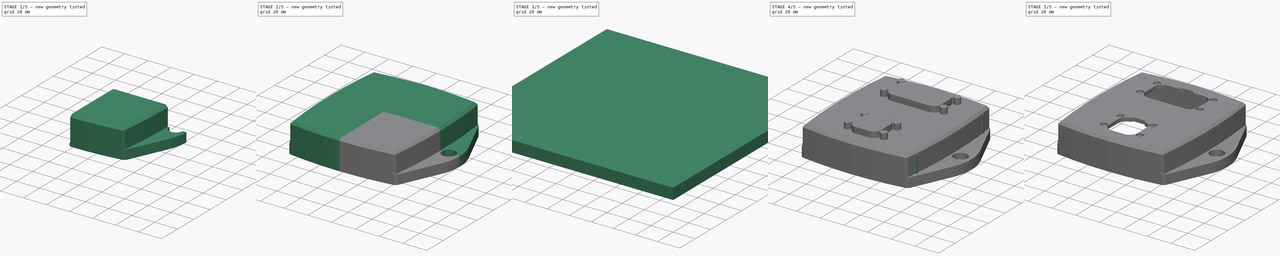
[diagram: build sequence overview — one tinted view per stage of 5, left to right]
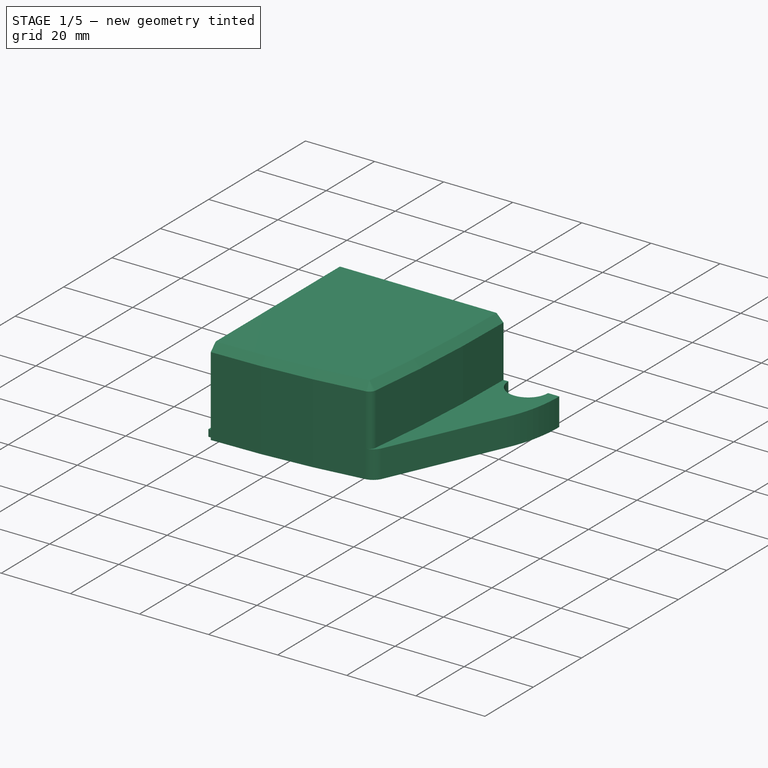
[diagram: stage 1 of 5 — iso view after this stage's code; geometry added in this stage tinted green]
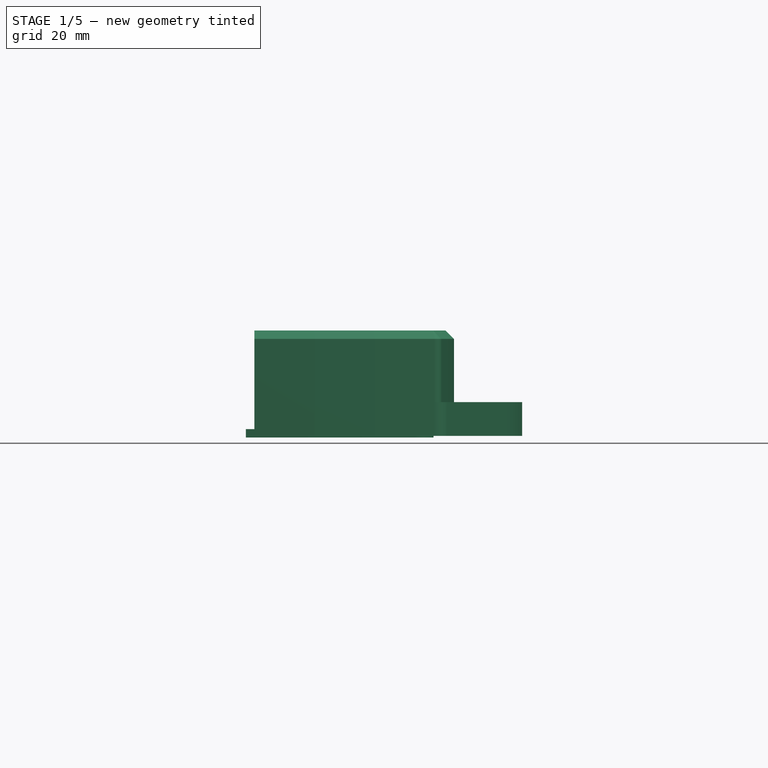
[diagram: stage 1 of 5 — front view after this stage's code; geometry added in this stage tinted green]
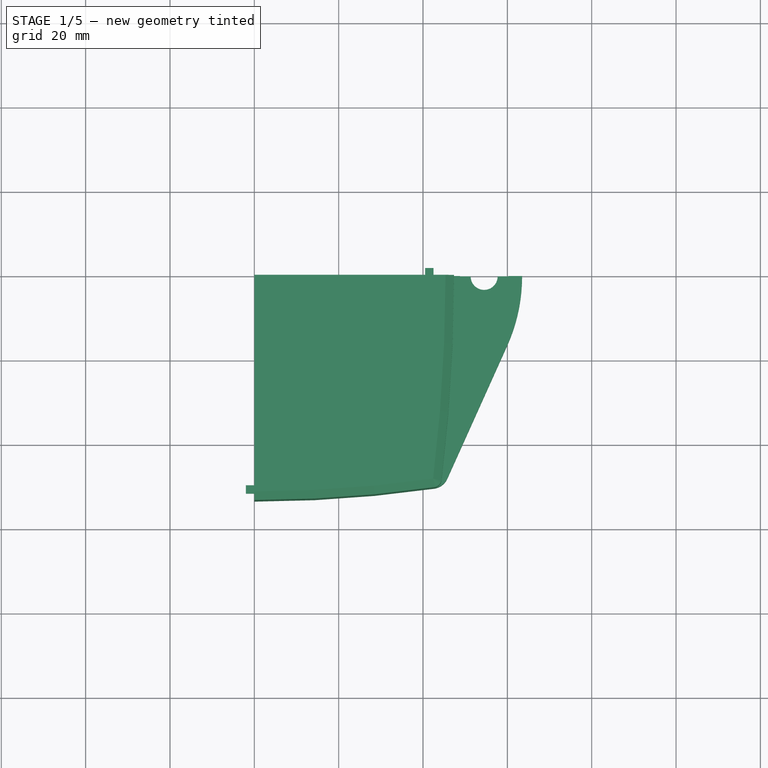
[diagram: stage 1 of 5 — top view after this stage's code; geometry added in this stage tinted green]
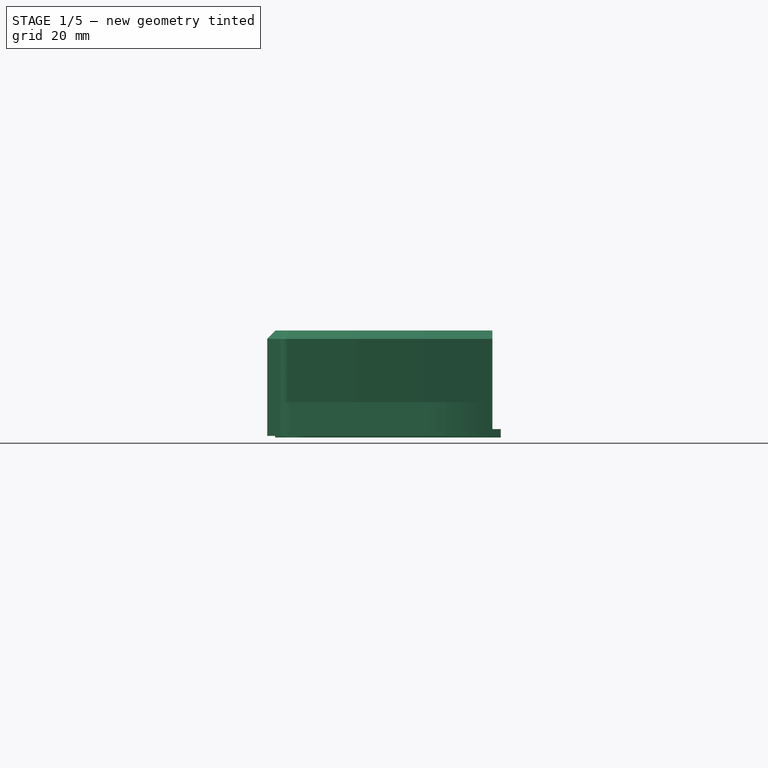
[diagram: stage 1 of 5 — right view after this stage's code; geometry added in this stage tinted green]
FCSTD DOCUMENT  (FreeCAD 0.19R)
Label: enclosure_top
License: All rights reserved
LicenseURL: http://en.wikipedia.org/wiki/All_rights_reserved
objects: Sketcher::SketchObject×10, Part::MultiFuse×7, Part::Mirroring×5, PartDesign::Pad×4, Part::Cut×4, TechDraw::DrawProjGroupItem×4, TechDraw::DrawLeaderLine×4, TechDraw::DrawViewAnnotation×4, PartDesign::Pocket×2, Part::Box×2, Part::Fillet×2, Part::Chamfer×1, Part::Sweep×1, Part::Feature×1, TechDraw::DrawSVGTemplate×1, TechDraw::DrawProjGroup×1, TechDraw::DrawPage×1
note: 45 computed .brp shape members not serialized (recipe doc carries the construction recipe); baked Part::Feature solids carry a one-line shape summary decoded from their .brp

FEATURE [Sketcher::SketchObject] Sketch010
  MapMode = 5
  sketch-geometry (9):
    g0: LineSegment StartX=44.8611 StartY=-50 StartZ=0 EndX=59.9759 EndY=-16.4167 EndZ=0
    g1: ArcOfCircle CenterX=23.5 CenterY=0 CenterZ=0 NormalX=0 NormalY=0 NormalZ=1 AngleXU=0 Radius=40 StartAngle=5.86027 EndAngle=6.28319
    g2: Circle CenterX=54.5 CenterY=0 CenterZ=0 NormalX=0 NormalY=0 NormalZ=1 AngleXU=0 Radius=6
    g3: ArcOfCircle CenterX=54.5 CenterY=0 CenterZ=0 NormalX=0 NormalY=0 NormalZ=1 AngleXU=0 Radius=3.2 StartAngle=3.14159 EndAngle=6.28319
    g4: LineSegment StartX=57.7 StartY=0 StartZ=0 EndX=63.5 EndY=0 EndZ=0
    g5: LineSegment StartX=0 StartY=-53.3732 StartZ=0 EndX=0 EndY=0 EndZ=0
    g6: LineSegment StartX=0 StartY=0 StartZ=0 EndX=51.3 EndY=0 EndZ=0
    g7: ArcOfCircle CenterX=0 CenterY=246.627 CenterZ=0 NormalX=0 NormalY=0 NormalZ=1 AngleXU=0 Radius=300 StartAngle=4.71239 EndAngle=4.86249
    g8: ArcOfCircle CenterX=-8955 CenterY=0 CenterZ=0 NormalX=0 NormalY=0 NormalZ=1 AngleXU=0 Radius=9000 StartAngle=6.27763 EndAngle=6.28319
  constraints (29):
    c: Tangent(g0,g1) = -1.5708
    c: Radius(g2) = 6
    c: PointOnObject(g1,g-1)
    c: Perpendicular(g1,g-1)
    c: Coincident(g4,g1)
    c: PointOnObject(g3,g-1)
    c: PointOnObject(g3,g-1)
    c: Radius(g3) = 3.2
    c: Coincident(g3,g2)
    c: Radius(g1) = 40
    c: PointOnObject(g5,g-2)
    c: Vertical(g5)
    c: PointOnObject(g6,g-1)
    c: Coincident(g6,g3)
    c: PointOnObject(g2,g-1)
    c: Coincident(g3,g4)
    c: Coincident(g5,g6)
    c: PointOnObject(g7,g-2)
    c: Coincident(g5,g7)
    c: Radius(g7) = 300
    c: PointOnObject(g8,g-1)
    c: PointOnObject(g8,g-1)
    c: Radius(g8) = 9000
    c: DistanceY(g8,g-1) = 50
    c: Coincident(g0,g7)
    c: Coincident(g0,g8)
    c: DistanceX(g-1,g8) = 45
    c: DistanceX(g8,g2) = 9.5
    c: DistanceX(g4,g4) = 5.8
FEATURE [PartDesign::Pad] Pad006
  AllowMultiFace = false
  Direction = (1,1,1)
  Length = 25
  Length2 = 100
  Profile = -> Sketch010
  Type = 0
FEATURE [Sketcher::SketchObject] Sketch012
  ExternalGeometry = -> [Pad006]
  MapMode = 5
  Placement = pos=(0,0,25) rot=(0,0,1;0rad)
  Support = -> [Pad006]
  sketch-geometry (1):
    g0: Circle CenterX=54.5 CenterY=0 CenterZ=0 NormalX=0 NormalY=0 NormalZ=1 AngleXU=0 Radius=5.75
  constraints (2):
    c: Coincident(g0,g-3)
    c: Radius(g0) = 5.75
FEATURE [PartDesign::Pocket] Pocket
  AllowMultiFace = false
  Length = 22
  Length2 = 100
  Profile = -> Sketch012
  Type = 0
FEATURE [Part::Fillet] Fillet
  Base = -> Pocket
  Edges = 1 edges r=4: [Edge2]
FEATURE [Sketcher::SketchObject] Sketch015
  ExternalGeometry = -> [Fillet]
  MapMode = 5
  Placement = pos=(0,0,25) rot=(0,0,1;0rad)
  Support = -> [Fillet]
  sketch-geometry (5):
    g0: ArcOfCircle CenterX=-352.657 CenterY=0 CenterZ=0 NormalX=0 NormalY=0 NormalZ=1 AngleXU=0 Radius=400 StartAngle=6.16142 EndAngle=6.28319
    g1: LineSegment StartX=47.3432 StartY=0 StartZ=0 EndX=69.3432 EndY=0 EndZ=0
    g2: LineSegment StartX=69.3432 StartY=0 StartZ=0 EndX=69.3432 EndY=-50.3215 EndZ=0
    g3: ArcOfCircle CenterX=42.3964 CenterY=-48.3419 CenterZ=0 NormalX=0 NormalY=0 NormalZ=1 AngleXU=0 Radius=2 StartAngle=4.85515 EndAngle=6.16142
    g4: LineSegment StartX=42.681 StartY=-50.3215 StartZ=0 EndX=69.3432 EndY=-50.3215 EndZ=0
  constraints (16):
    c: PointOnObject(g0,g-1)
    c: PointOnObject(g0,g-1)
    c: Radius(g0) = 400
    c: Coincident(g1,g0)
    c: Horizontal(g1)
    c: Coincident(g2,g1)
    c: Vertical(g2)
    c: DistanceX(g1,g1) = 22
    c: Coincident(g3,g-3)
    c: Coincident(g3,g0)
    c: Tangent(g3,g0)
    c: Tangent(g3,g-3)
    c: Coincident(g4,g3)
    c: Coincident(g4,g2)
    c: Horizontal(g4)
    c: Radius(g3) = 2
FEATURE [PartDesign::Pocket] Pocket001
  AllowMultiFace = false
  Length = 17
  Length2 = 100
  Profile = -> Sketch015
  Type = 0
FEATURE [Part::Chamfer] Chamfer
  Base = -> Pocket001
  Edges = 1 edges r=2: [Edge20]
FEATURE [Sketcher::SketchObject] Sketch013
  MapMode = 5
  sketch-geometry (5):
    g0: ArcOfCircle CenterX=0 CenterY=249.5 CenterZ=0 NormalX=0 NormalY=0 NormalZ=1 AngleXU=0 Radius=300 StartAngle=4.71239 EndAngle=4.83942
    g1: ArcOfCircle CenterX=37.5 CenterY=-44.115 CenterZ=0 NormalX=0 NormalY=0 NormalZ=1 AngleXU=0 Radius=4 StartAngle=4.83942 EndAngle=6.28319
    g2: LineSegment StartX=41.5 StartY=-44.115 StartZ=0 EndX=41.5 EndY=0 EndZ=0
    g3: LineSegment StartX=41.5 StartY=0 StartZ=0 EndX=41.5 EndY=2 EndZ=0
    g4: LineSegment StartX=0 StartY=-50.5 StartZ=0 EndX=-2 EndY=-50.5 EndZ=0
  constraints (18):
    c: PointOnObject(g0,g-2)
    c: PointOnObject(g0,g-2)
    c: Coincident(g1,g0)
    c: Coincident(g2,g1)
    c: Vertical(g2)
    c: PointOnObject(g2,g-1)
    c: Tangent(g1,g2)
    c: Tangent(g1,g0)
    c: Radius(g1) = 4
    c: Radius(g0) = 300
    c: DistanceY(g0,g-1) = 50.5
    c: DistanceX(g-1,g2) = 41.5
    c: Coincident(g3,g2)
    c: Coincident(g4,g0)
    c: Horizontal(g4)
    c: Equal(g4,g3)
    c: Vertical(g3)
    c: DistanceY(g3,g3) = 2
FEATURE [Sketcher::SketchObject] Sketch016
  MapMode = 5
  Placement = pos=(0,0,0) rot=(1,0,0;1.5708rad)
  sketch-geometry (5):
    g0: LineSegment StartX=40.5 StartY=1.6 StartZ=0 EndX=42.5 EndY=1.6 EndZ=0
    g1: LineSegment StartX=42.5 StartY=1.6 StartZ=0 EndX=42.5 EndY=-0.4 EndZ=0
    g2: LineSegment StartX=42.5 StartY=-0.4 StartZ=0 EndX=40.5 EndY=-0.4 EndZ=0
    g3: LineSegment StartX=40.5 StartY=-0.4 StartZ=0 EndX=40.5 EndY=1.6 EndZ=0
    g4: LineSegment StartX=41.5 StartY=1.6 StartZ=0 EndX=41.5 EndY=-0.4 EndZ=0
  constraints (16):
    c: Coincident(g0,g1)
    c: Coincident(g1,g2)
    c: Coincident(g2,g3)
    c: Coincident(g3,g0)
    c: Horizontal(g0)
    c: Horizontal(g2)
    c: Vertical(g1)
    c: Vertical(g3)
    c: Equal(g1,g0)
    c: DistanceX(g0,g0) = 2
    c: DistanceY(g-1,g0) = 1.6
    c: PointOnObject(g4,g0)
    c: Vertical(g4)
    c: PointOnObject(g4,g2)
    c: Symmetric(g2,g1,g4)
    c: DistanceX(g-1,g4) = 41.5
FEATURE [Part::Sweep] Sweep
  Frenet = false
  Sections = -> [Sketch016]
  Solid = true
  Spine = -> Sketch013 [Edge2,Edge1,Edge3,Edge4,Edge5]
  Transition = 1
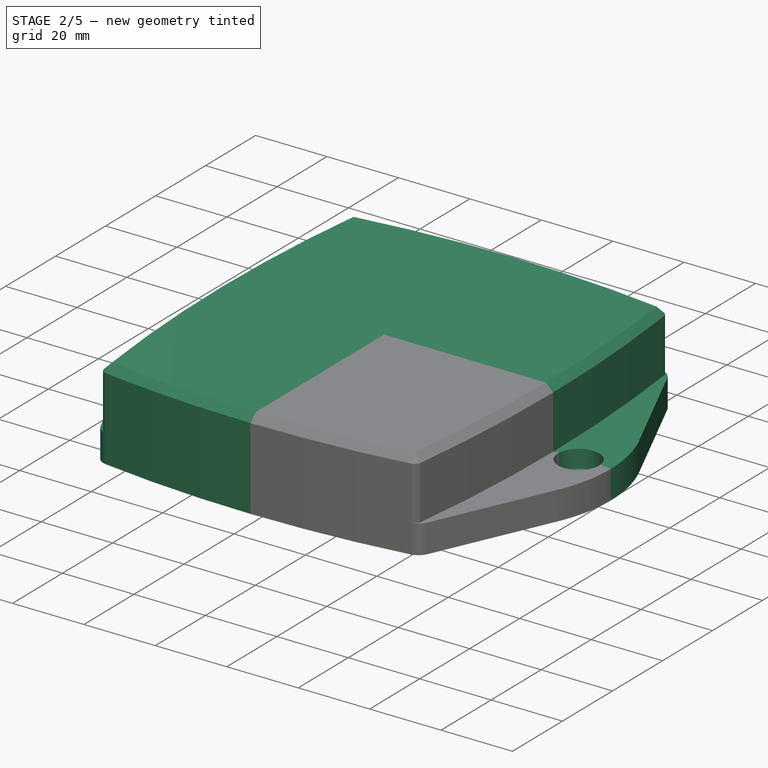
[diagram: stage 2 of 5 — iso view after this stage's code; geometry added in this stage tinted green]
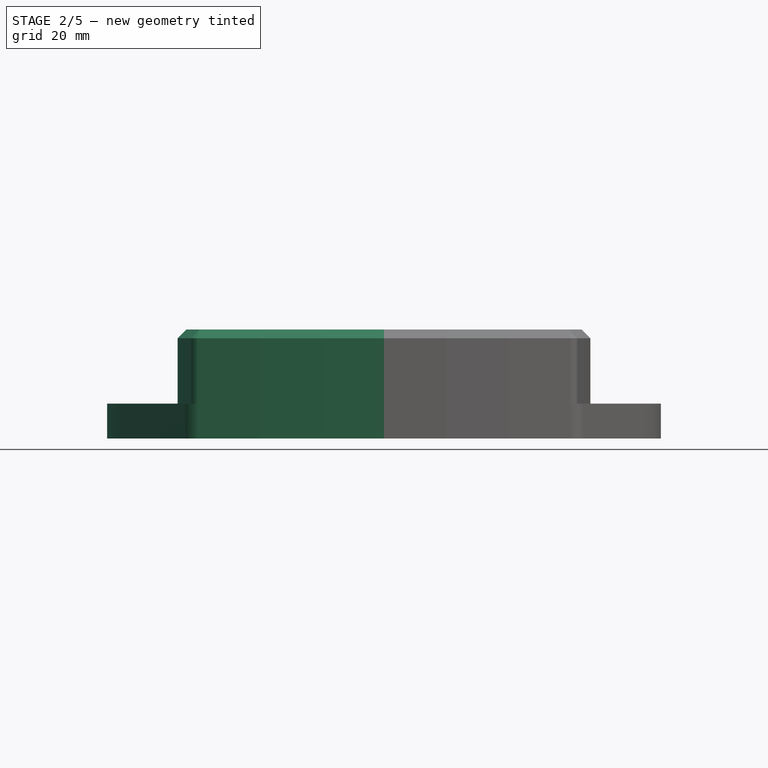
[diagram: stage 2 of 5 — front view after this stage's code; geometry added in this stage tinted green]
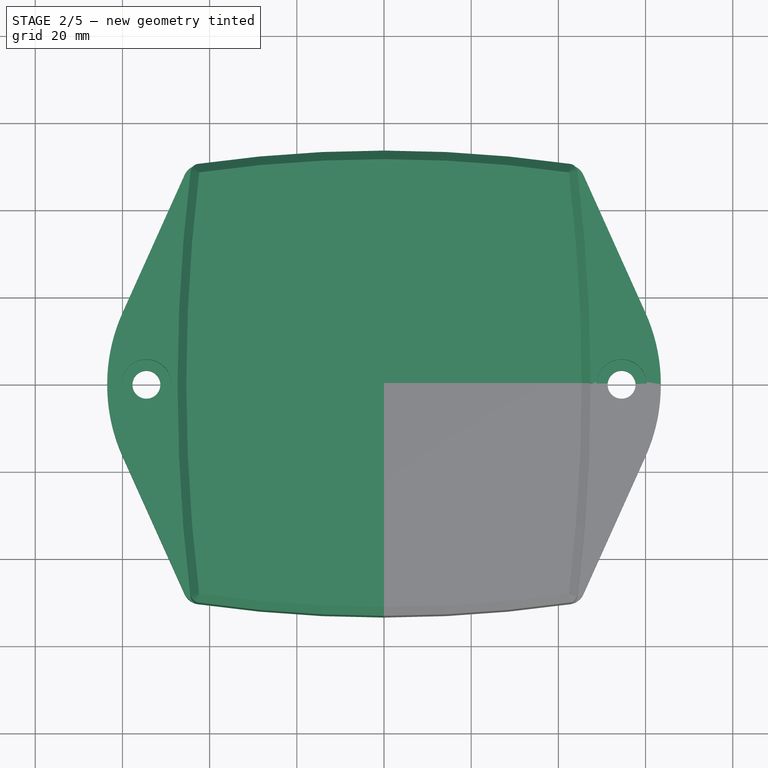
[diagram: stage 2 of 5 — top view after this stage's code; geometry added in this stage tinted green]
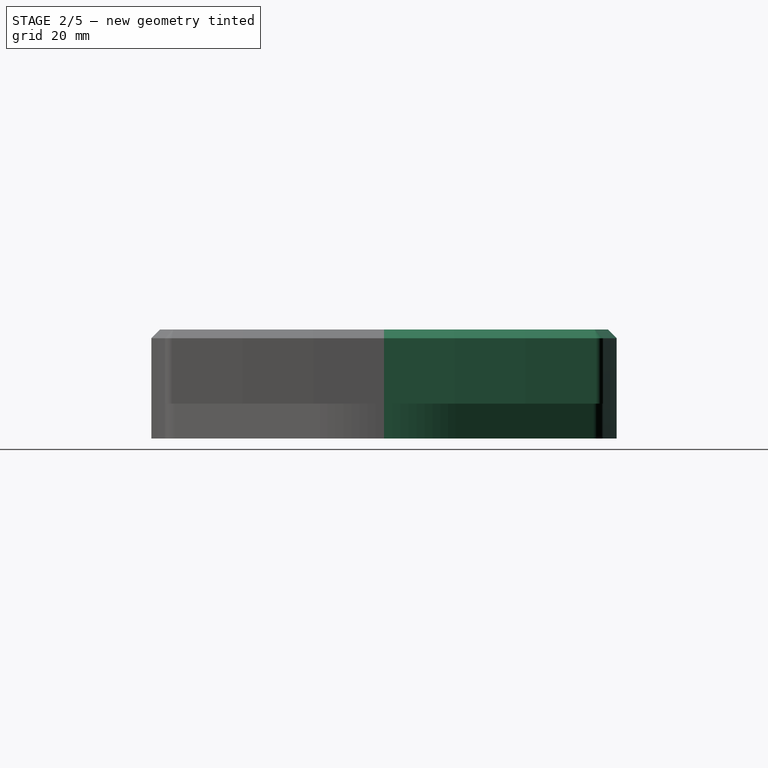
[diagram: stage 2 of 5 — right view after this stage's code; geometry added in this stage tinted green]
FEATURE [Part::Cut] Cut
  Base = -> Chamfer
  Tool = -> Sweep
FEATURE [Part::Mirroring] Part__Mirroring011  label="Cut (Mirror #4)"
  Base = (0,0,0)
  Normal = (0,1,0)
  Source = -> Cut
FEATURE [Part::MultiFuse] Fusion
  Shapes = -> [Cut,Part__Mirroring011]
FEATURE [Part::Mirroring] Part__Mirroring012  label="Fusion (Mirror #5)"
  Base = (0,0,0)
  Normal = (1,0,0)
  Source = -> Fusion
FEATURE [Part::MultiFuse] Fusion018
  Shapes = -> [Fusion,Part__Mirroring012]
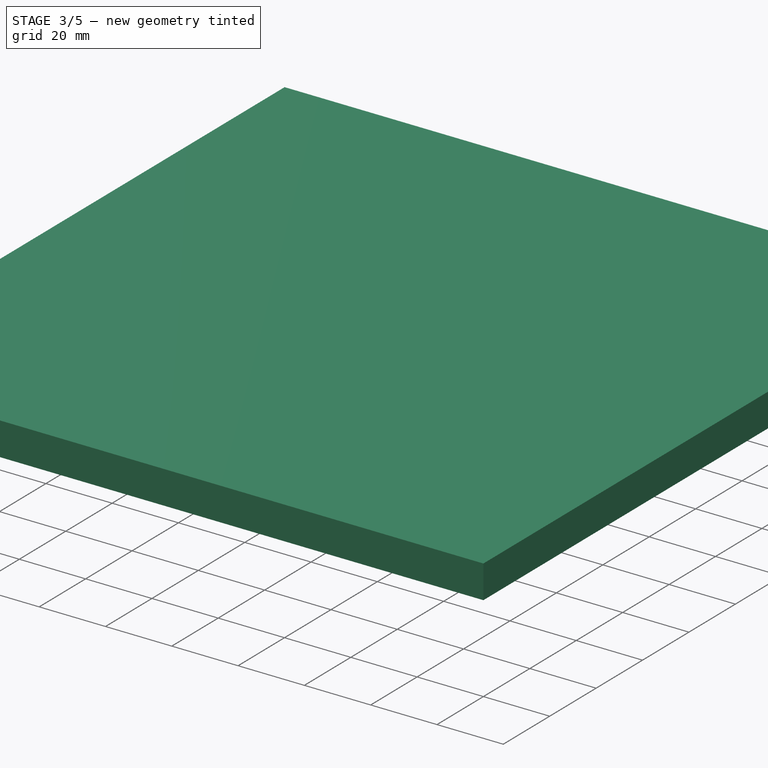
[diagram: stage 3 of 5 — iso view after this stage's code; geometry added in this stage tinted green]
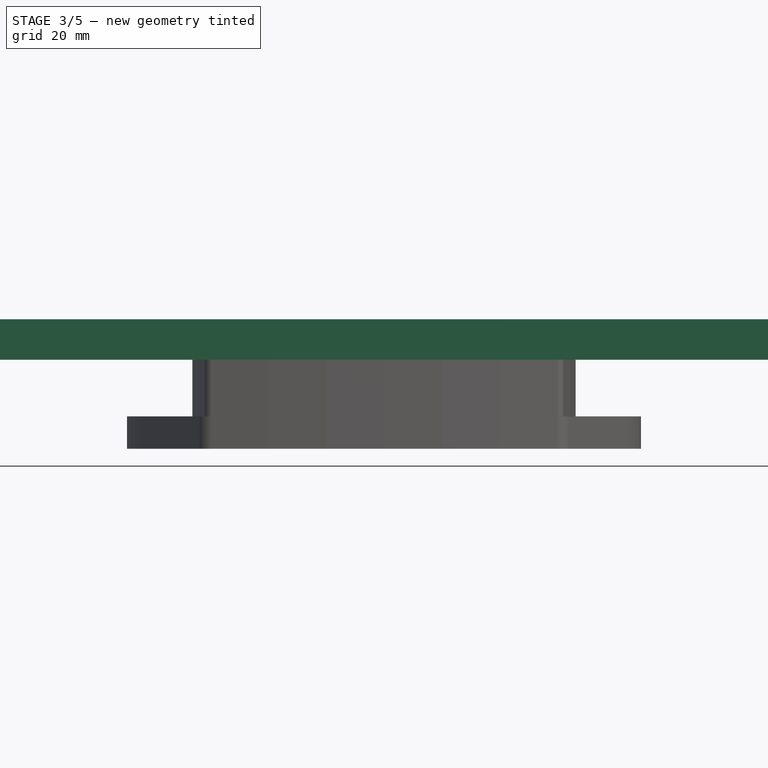
[diagram: stage 3 of 5 — front view after this stage's code; geometry added in this stage tinted green]
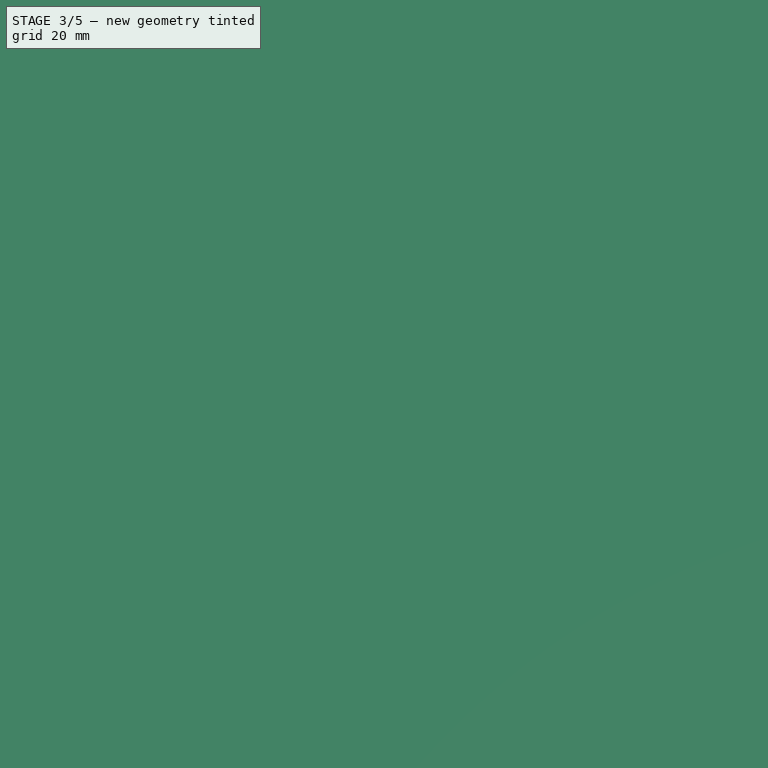
[diagram: stage 3 of 5 — top view after this stage's code; geometry added in this stage tinted green]
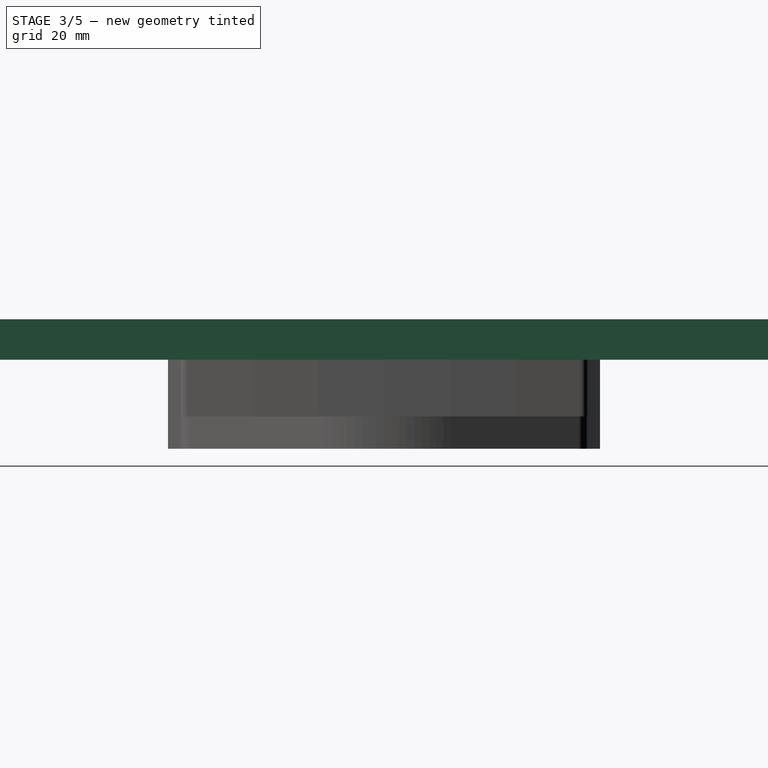
[diagram: stage 3 of 5 — right view after this stage's code; geometry added in this stage tinted green]
FEATURE [Sketcher::SketchObject] Sketch002
  MapMode = 5
  Placement = pos=(0,0,0) rot=(1,0,0;1.5708rad)
  sketch-geometry (4):
    g0: LineSegment StartX=-90 StartY=0 StartZ=0 EndX=0 EndY=0 EndZ=0
    g1: LineSegment StartX=0 StartY=0 StartZ=0 EndX=0 EndY=25.1667 EndZ=0
    g2: LineSegment StartX=-90 StartY=17 StartZ=0 EndX=-90 EndY=0 EndZ=0
    g3: ArcOfCircle CenterX=0 CenterY=-474.833 CenterZ=0 NormalX=0 NormalY=0 NormalZ=1 AngleXU=0 Radius=500 StartAngle=1.5708 EndAngle=1.75178
  constraints (13):
    c: Coincident(g0,g1)
    c: Coincident(g2,g0)
    c: Horizontal(g0)
    c: Vertical(g1)
    c: Vertical(g2)
    c: PointOnObject(g3,g-2)
    c: Coincident(g3,g2)
    c: Coincident(g3,g1)
    c: PointOnObject(g0,g-1)
    c: Radius(g3) = 500
    c: DistanceX(g0,g-1) = 90
    c: DistanceY(g2,g2) = 17
    c: PointOnObject(g0,g-2)
FEATURE [Sketcher::SketchObject] Sketch
  MapMode = 5
  sketch-geometry (6):
    g0: LineSegment StartX=-39.2 StartY=0 StartZ=0 EndX=0 EndY=0 EndZ=0
    g1: LineSegment StartX=0 StartY=0 StartZ=0 EndX=0 EndY=47.6 EndZ=0
    g2: Circle CenterX=-45 CenterY=40 CenterZ=0 NormalX=0 NormalY=0 NormalZ=1 AngleXU=0 Radius=1.1
    g3: ArcOfCircle CenterX=-36.7 CenterY=42.8276 CenterZ=0 NormalX=0 NormalY=0 NormalZ=1 AngleXU=0 Radius=2.5 StartAngle=1.69448 EndAngle=3.14159
    g4: ArcOfCircle CenterX=0 CenterY=-252.4 CenterZ=0 NormalX=0 NormalY=0 NormalZ=1 AngleXU=0 Radius=300 StartAngle=1.5708 EndAngle=1.69447
    g5: LineSegment StartX=-39.2 StartY=0 StartZ=0 EndX=-39.2 EndY=42.8276 EndZ=0
  constraints (19):
    c: PointOnObject(g0,g-1)
    c: PointOnObject(g1,g-2)
    c: DistanceY(g-1,g1) = 47.6
    c: DistanceX(g0,g-1) = 39.2
    c: Coincident(g0,g-1)
    c: Coincident(g1,g-1)
    c: Radius(g2) = 1.1
    c: Radius(g3) = 2.5
    c: DistanceY(g-1,g2) = 40
    c: DistanceX(g2,g-1) = 45
    c: Coincident(g4,g3)
    c: Coincident(g1,g4)
    c: Tangent(g4,g3)
    c: PointOnObject(g4,g-2)
    c: Radius(g4) = 300
    c: Coincident(g5,g0)
    c: Coincident(g5,g3)
    c: Vertical(g5)
    c: Tangent(g3,g5)
FEATURE [PartDesign::Pad] Pad
  AllowMultiFace = false
  Direction = (1,1,1)
  Length = 30
  Length2 = 100
  Profile = -> Sketch
  Type = 0
FEATURE [Sketcher::SketchObject] Sketch008
  MapMode = 5
  Placement = pos=(0,0,30) rot=(0,0,1;0rad)
  sketch-geometry (30):
    g0: LineSegment StartX=-15.5 StartY=41 StartZ=0 EndX=-5.75 EndY=41 EndZ=0
    g1: LineSegment StartX=22 StartY=34.5 StartZ=0 EndX=22 EndY=23.5 EndZ=0
    g2: LineSegment StartX=15.5 StartY=17 StartZ=0 EndX=-15.5 EndY=17 EndZ=0
    g3: LineSegment StartX=-22 StartY=23.5 StartZ=0 EndX=-22 EndY=34.5 EndZ=0
    g4: ArcOfCircle CenterX=15.5 CenterY=23.5 CenterZ=0 NormalX=0 NormalY=0 NormalZ=1 AngleXU=0 Radius=6.5 StartAngle=4.71239 EndAngle=6.28319
    g5: ArcOfCircle CenterX=15.5 CenterY=34.5 CenterZ=0 NormalX=0 NormalY=0 NormalZ=1 AngleXU=0 Radius=6.5 StartAngle=0 EndAngle=1.5708
    g6: ArcOfCircle CenterX=-15.5 CenterY=34.5 CenterZ=0 NormalX=0 NormalY=0 NormalZ=1 AngleXU=0 Radius=6.5 StartAngle=1.5708 EndAngle=3.14159
    g7: ArcOfCircle CenterX=-15.5 CenterY=23.5 CenterZ=0 NormalX=0 NormalY=0 NormalZ=1 AngleXU=0 Radius=6.5 StartAngle=3.14159 EndAngle=4.71239
    g8: LineSegment StartX=12 StartY=-23.6849 StartZ=0 EndX=12 EndY=-34.3 EndZ=0
    g9: LineSegment StartX=5.3 StartY=-41 StartZ=0 EndX=-5.3 EndY=-41 EndZ=0
    g10: LineSegment StartX=-12 StartY=-34.3 StartZ=0 EndX=-12 EndY=-23.6849 EndZ=0
    g11: ArcOfCircle CenterX=5.3 CenterY=-34.3 CenterZ=0 NormalX=0 NormalY=0 NormalZ=1 AngleXU=0 Radius=6.7 StartAngle=4.71239 EndAngle=6.28319
    g12: ArcOfCircle CenterX=5.3 CenterY=-23.6849 CenterZ=0 NormalX=0 NormalY=0 NormalZ=1 AngleXU=0 Radius=6.7 StartAngle=0 EndAngle=1.50358
    g13: ArcOfCircle CenterX=-5.3 CenterY=-23.6849 CenterZ=0 NormalX=0 NormalY=0 NormalZ=1 AngleXU=0 Radius=6.7 StartAngle=1.63801 EndAngle=3.14159
    g14: ArcOfCircle CenterX=-5.3 CenterY=-34.3 CenterZ=0 NormalX=0 NormalY=0 NormalZ=1 AngleXU=0 Radius=6.7 StartAngle=3.14159 EndAngle=4.71239
    g15: LineSegment StartX=-5.75 StartY=-17 StartZ=0 EndX=-5.75 EndY=-15 EndZ=0
    g16: LineSegment StartX=-5.75 StartY=-15 StartZ=0 EndX=5.75 EndY=-15 EndZ=0
    g17: LineSegment StartX=5.75 StartY=-15 StartZ=0 EndX=5.75 EndY=-17 EndZ=0
    g18: LineSegment StartX=-5.75 StartY=41 StartZ=0 EndX=-5.75 EndY=43 EndZ=0
    g19: LineSegment StartX=-5.75 StartY=43 StartZ=0 EndX=5.75 EndY=43 EndZ=0
    g20: LineSegment StartX=5.75 StartY=43 StartZ=0 EndX=5.75 EndY=41 EndZ=0
    g21: LineSegment StartX=5.75 StartY=41 StartZ=0 EndX=15.5 EndY=41 EndZ=0
    g22: Circle CenterX=-15.2 CenterY=-36.3 CenterZ=0 NormalX=0 NormalY=0 NormalZ=1 AngleXU=0 Radius=1.6
    g23: Circle CenterX=15.2 CenterY=-36.3 CenterZ=0 NormalX=0 NormalY=0 NormalZ=1 AngleXU=0 Radius=1.6
    g24: Circle CenterX=13.7 CenterY=-18.15 CenterZ=0 NormalX=0 NormalY=0 NormalZ=1 AngleXU=0 Radius=1.6
    g25: Circle CenterX=-13.7 CenterY=-18.15 CenterZ=0 NormalX=0 NormalY=0 NormalZ=1 AngleXU=0 Radius=1.6
    g26: Circle CenterX=-25.15 CenterY=21.7 CenterZ=0 NormalX=0 NormalY=0 NormalZ=1 AngleXU=0 Radius=1.6
    g27: Circle CenterX=-23.7 CenterY=39.85 CenterZ=0 NormalX=0 NormalY=0 NormalZ=1 AngleXU=0 Radius=1.6
    g28: Circle CenterX=23.7 CenterY=39.85 CenterZ=0 NormalX=0 NormalY=0 NormalZ=1 AngleXU=0 Radius=1.6
    g29: Circle CenterX=25.15 CenterY=21.7 CenterZ=0 NormalX=0 NormalY=0 NormalZ=1 AngleXU=0 Radius=1.6
  constraints (78):
    c: Horizontal(g0)
    c: Horizontal(g2)
    c: Vertical(g1)
    c: Vertical(g3)
    c: Tangent(g2,g4) = 1.5708
    c: Tangent(g1,g4) = 1.5708
    c: Tangent(g1,g5) = 1.5708
    c: Tangent(g21,g5) = 1.5708
    c: Tangent(g0,g6) = 1.5708
    c: Tangent(g3,g6) = 1.5708
    c: Tangent(g3,g7) = 1.5708
    c: Tangent(g2,g7) = 1.5708
    c: Equal(g7,g6)
    c: Equal(g6,g5)
    c: Equal(g5,g4)
    c: Symmetric(g1,g3,g-2)
    c: DistanceX(g3,g1) = 44
    c: Radius(g6) = 6.5
    c: DistanceY(g-1,g0) = 41
    c: DistanceY(g2,g0) = 24
    c: Horizontal(g9)
    c: Vertical(g8)
    c: Vertical(g10)
    c: Tangent(g9,g11) = 1.5708
    c: Tangent(g8,g11) = 1.5708
    c: Tangent(g8,g12) = 1.5708
    c: Tangent(g10,g13) = 1.5708
    c: Tangent(g10,g14) = 1.5708
    c: Tangent(g9,g14) = 1.5708
    c: Equal(g14,g11)
    c: Equal(g11,g12)
    c: Equal(g12,g13)
    c: Symmetric(g10,g8,g-2)
    c: Radius(g11) = 6.7
    c: DistanceX(g10,g8) = 24
    c: Vertical(g15)
    c: Coincident(g15,g16)
    c: Horizontal(g16)
    c: Coincident(g16,g17)
    c: Vertical(g17)
    c: Symmetric(g15,g16,g-2)
    c: DistanceY(g17,g17) = 2
    c: Vertical(g18)
    c: Coincident(g18,g19)
    c: Horizontal(g19)
    c: Coincident(g19,g20)
    c: Vertical(g20)
    c: Coincident(g0,g18)
    c: Coincident(g21,g20)
    c: Tangent(g0,g21)
    c: Symmetric(g19,g18,g-2)
    c: DistanceX(g19,g19) = 11.5
    c: DistanceY(g18,g18) = 2
    c: Equal(g24,g23)
    c: Equal(g23,g22)
    c: Equal(g22,g25)
    c: Symmetric(g25,g24,g-2)
    c: Symmetric(g23,g22,g-2)
    c: Radius(g22) = 1.6
    c: DistanceX(g22,g23) = 30.4
    c: DistanceX(g25,g24) = 27.4
    c: DistanceY(g22,g25) = 18.15
    c: DistanceY(g9,g22) = 4.7
    c: Equal(g29,g28)
    c: Equal(g28,g27)
    c: Equal(g27,g26)
    c: Equal(g26,g25)
    c: Symmetric(g26,g29,g-2)
    c: Symmetric(g28,g27,g-2)
    c: DistanceY(g26,g27) = 18.15
    c: DistanceY(g2,g26) = 4.7
    c: DistanceX(g27,g-1) = 23.7
    c: DistanceX(g26,g-1) = 25.15
    c: Coincident(g12,g17)
    c: Coincident(g13,g15)
    c: DistanceX(g16,g16) = 11.5
    c: DistanceY(g16,g-1) = 15
    c: DistanceY(g9,g15) = 26
FEATURE [PartDesign::Pad] Pad004  label="ampseal_holes"
  AllowMultiFace = false
  Direction = (1,1,1)
  Length = 15
  Length2 = 100
  Placement = pos=(0,0,30) rot=(0,0,1;0rad)
  Profile = -> Sketch008
  Reversed = true
  Type = 0
FEATURE [Sketcher::SketchObject] Sketch009
  MapMode = 5
  Placement = pos=(0,0,30) rot=(0,0,1;0rad)
  sketch-geometry (8):
    g0: Circle CenterX=-23.7 CenterY=39.85 CenterZ=0 NormalX=0 NormalY=0 NormalZ=1 AngleXU=0 Radius=2.8
    g1: Circle CenterX=-25.15 CenterY=21.7 CenterZ=0 NormalX=0 NormalY=0 NormalZ=1 AngleXU=0 Radius=2.8
    g2: Circle CenterX=25.15 CenterY=21.7 CenterZ=0 NormalX=0 NormalY=0 NormalZ=1 AngleXU=0 Radius=2.8
    g3: Circle CenterX=23.7 CenterY=39.85 CenterZ=0 NormalX=0 NormalY=0 NormalZ=1 AngleXU=0 Radius=2.8
    g4: Circle CenterX=13.7 CenterY=-18.15 CenterZ=0 NormalX=0 NormalY=0 NormalZ=1 AngleXU=0 Radius=2.8
    g5: Circle CenterX=15.2 CenterY=-36.3 CenterZ=0 NormalX=0 NormalY=0 NormalZ=1 AngleXU=0 Radius=2.8
    g6: Circle CenterX=-15.2 CenterY=-36.3 CenterZ=0 NormalX=0 NormalY=0 NormalZ=1 AngleXU=0 Radius=2.8
    g7: Circle CenterX=-13.7 CenterY=-18.15 CenterZ=0 NormalX=0 NormalY=0 NormalZ=1 AngleXU=0 Radius=2.8
  constraints (8):
    c: Equal(g7,g6)
    c: Equal(g6,g5)
    c: Equal(g5,g4)
    c: Equal(g4,g2)
    c: Equal(g2,g3)
    c: Equal(g3,g0)
    c: Equal(g0,g1)
    c: Radius(g0) = 2.8
FEATURE [PartDesign::Pad] Pad005
  AllowMultiFace = false
  Direction = (1,1,1)
  Length = 6.5
  Length2 = 100
  Placement = pos=(0,0,30) rot=(0,0,1;0rad)
  Profile = -> Sketch009
  Reversed = true
  Type = 0
FEATURE [Part::MultiFuse] Fusion005  label="ampseal_holes001"
  Shapes = -> [Pad005,Pad004]
FEATURE [Part::Box] Box  label="Cube"
  AttacherType = Attacher::AttachEngine3D
  Height = 10
  Length = 200
  Placement = pos=(-100,-100,22) rot=(0,0,1;0rad)
  Width = 200
FEATURE [Part::Fillet] Fillet012
  Base = -> Fusion005
  Edges = 4 edges r=1.9: [Edge76,Edge79,Edge97,Edge100]
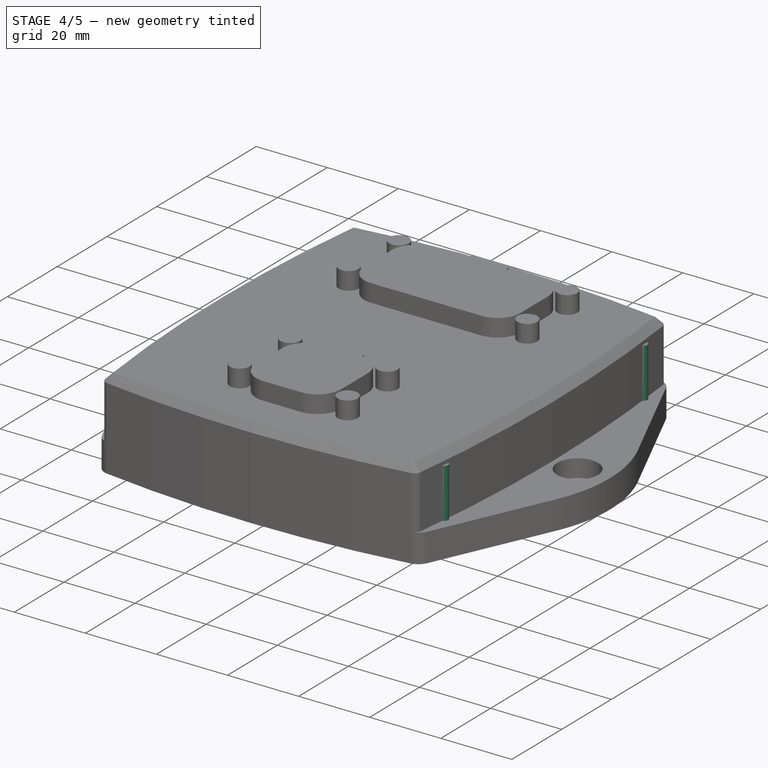
[diagram: stage 4 of 5 — iso view after this stage's code; geometry added in this stage tinted green]
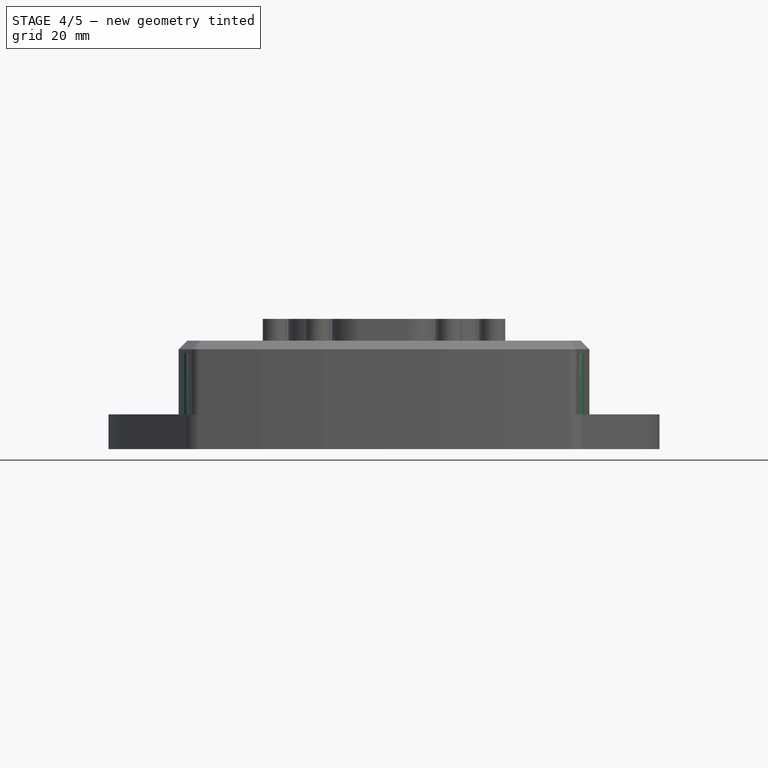
[diagram: stage 4 of 5 — front view after this stage's code; geometry added in this stage tinted green]
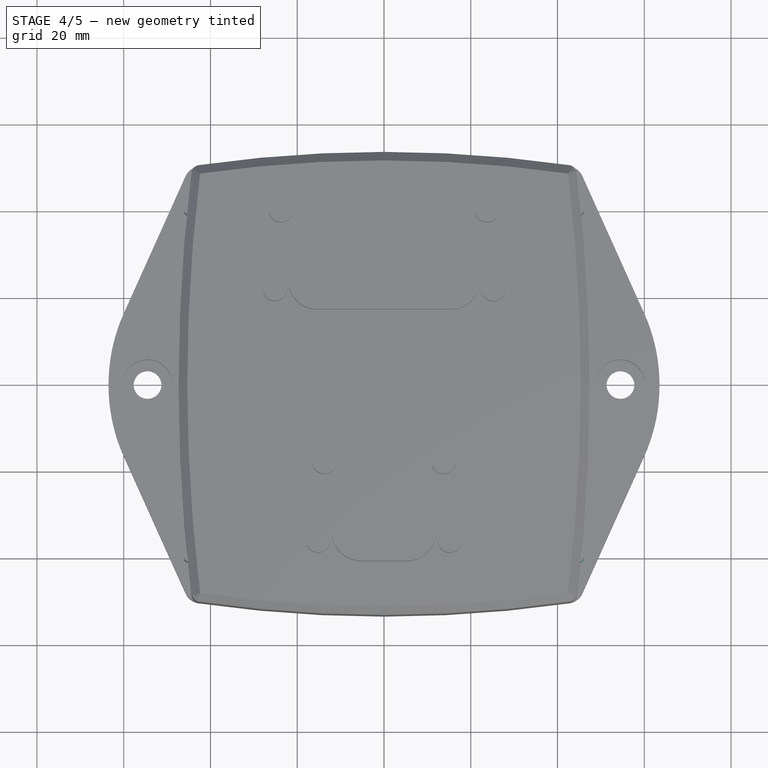
[diagram: stage 4 of 5 — top view after this stage's code; geometry added in this stage tinted green]
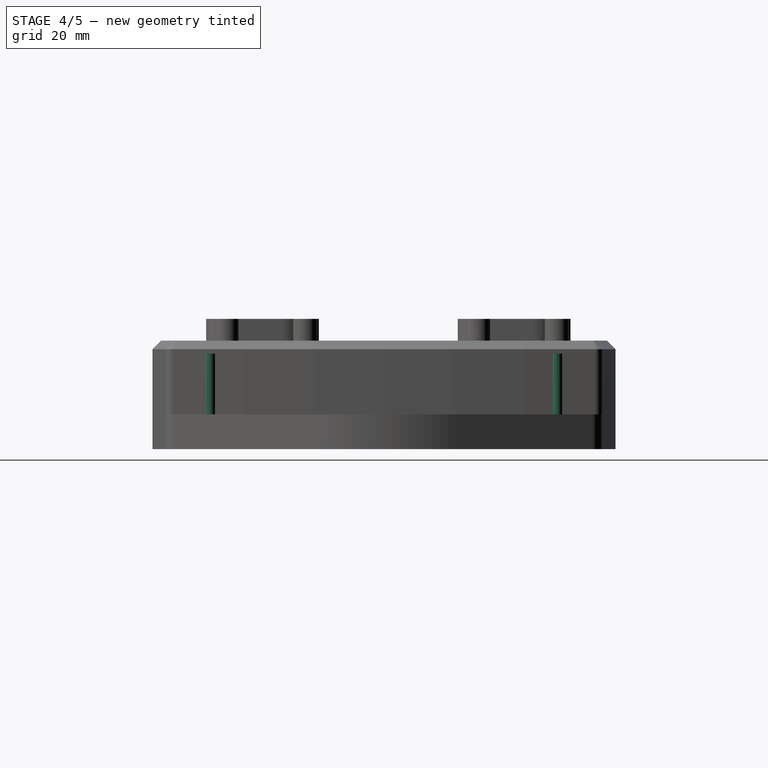
[diagram: stage 4 of 5 — right view after this stage's code; geometry added in this stage tinted green]
FEATURE [Part::Mirroring] Part__Mirroring  label="Pad (Mirror #2)"
  Base = (0,0,0)
  Normal = (0,1,0)
  Source = -> Pad
FEATURE [Part::MultiFuse] Fusion001
  Shapes = -> [Part__Mirroring,Pad]
FEATURE [Part::Mirroring] Part__Mirroring005  label="Fusion001 (Mirror #3)"
  Base = (0,0,0)
  Normal = (1,0,0)
  Source = -> Fusion001
FEATURE [Part::MultiFuse] Fusion002
  Shapes = -> [Fusion001,Part__Mirroring005]
FEATURE [Part::Cut] Cut001
  Base = -> Fusion002
  Tool = -> Box
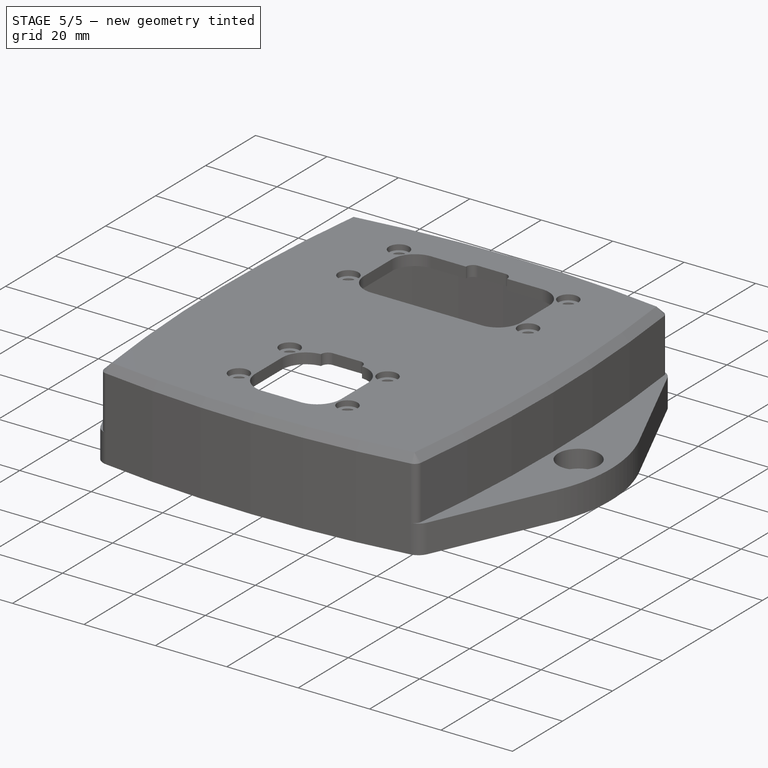
[diagram: stage 5 of 5 — iso view after this stage's code; geometry added in this stage tinted green]
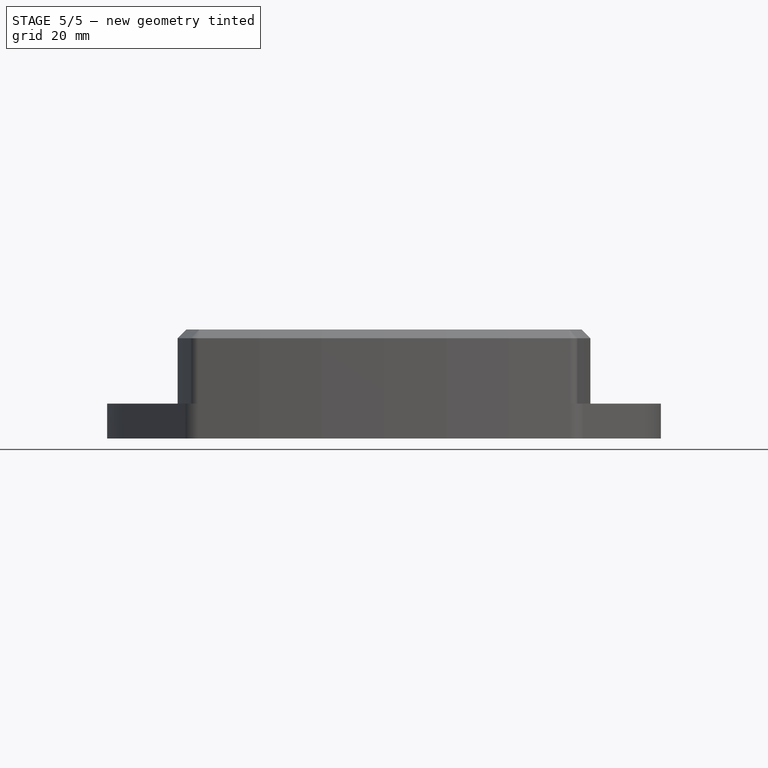
[diagram: stage 5 of 5 — front view after this stage's code; geometry added in this stage tinted green]
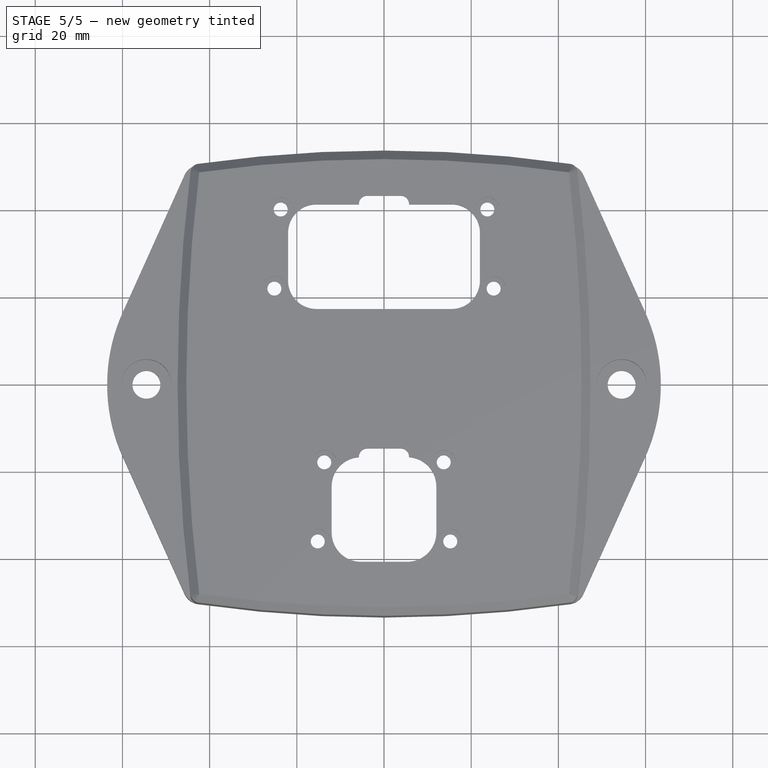
[diagram: stage 5 of 5 — top view after this stage's code; geometry added in this stage tinted green]
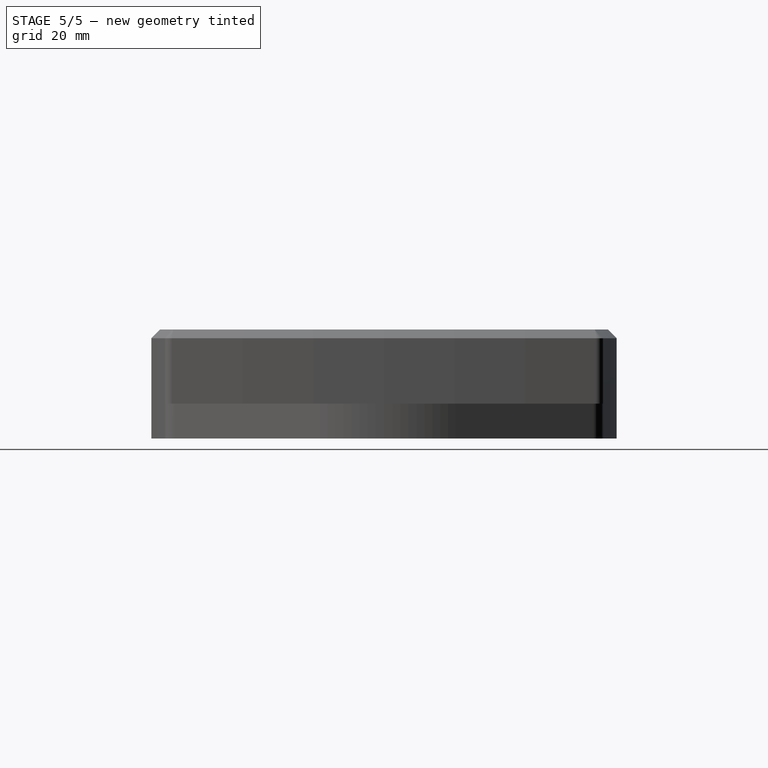
[diagram: stage 5 of 5 — right view after this stage's code; geometry added in this stage tinted green]
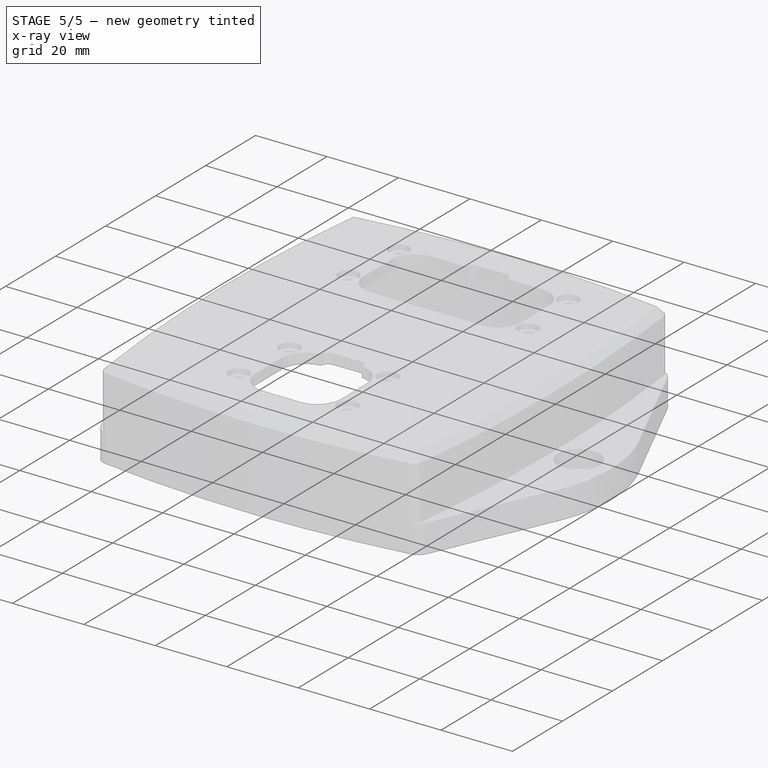
[diagram: stage 5 of 5 — x-ray composite at the iso view; earlier geometry ghosted, this stage's added geometry solid]
FEATURE [Sketcher::SketchObject] Sketch014  label="o-ring"
  MapMode = 5
  Placement = pos=(0,0,0) rot=(1,0,0;3.14159rad)
  sketch-geometry (8):
    g0: LineSegment StartX=32.5 StartY=44.5 StartZ=0 EndX=32.5 EndY=-44.5 EndZ=0
    g1: LineSegment StartX=-32.5 StartY=-44.5 StartZ=0 EndX=-32.5 EndY=44.5 EndZ=0
    g2: ArcOfCircle CenterX=28.5 CenterY=-44.5 CenterZ=0 NormalX=0 NormalY=0 NormalZ=1 AngleXU=0 Radius=4 StartAngle=4.71238 EndAngle=6.28319
    g3: ArcOfCircle CenterX=-28.5 CenterY=-44.5 CenterZ=0 NormalX=0 NormalY=0 NormalZ=1 AngleXU=0 Radius=4 StartAngle=3.14159 EndAngle=4.71239
    g4: ArcOfCircle CenterX=-28.5 CenterY=44.5 CenterZ=0 NormalX=0 NormalY=0 NormalZ=1 AngleXU=0 Radius=4 StartAngle=1.57079 EndAngle=3.14159
    g5: ArcOfCircle CenterX=28.5 CenterY=44.5 CenterZ=0 NormalX=0 NormalY=0 NormalZ=1 AngleXU=0 Radius=4 StartAngle=0 EndAngle=1.5708
    g6: LineSegment StartX=-28.5 StartY=48.5 StartZ=0 EndX=28.5 EndY=48.5 EndZ=0
    g7: LineSegment StartX=-28.5 StartY=-48.5 StartZ=0 EndX=28.5 EndY=-48.5 EndZ=0
  constraints (23):
    c: Vertical(g0)
    c: Vertical(g1)
    c: Tangent(g0,g2) = 1.5708
    c: Tangent(g1,g3) = 1.5708
    c: Tangent(g1,g4) = 1.5708
    c: Tangent(g0,g5) = 1.5708
    c: Symmetric(g1,g0,g-2)
    c: Equal(g4,g3)
    c: DistanceX(g3,g-1) = 28.5
    c: DistanceY(g3,g-1) = 44.5
    c: Radius(g3) = 4
    c: Equal(g2,g3)
    c: DistanceY(g-1,g4) = 44.5
    c: Coincident(g6,g4)
    c: Coincident(g6,g5)
    c: Horizontal(g6)
    c: Coincident(g7,g3)
    c: Coincident(g7,g2)
    c: Horizontal(g7)
    c: Tangent(g2,g7)
    c: Tangent(g7,g3)
    c: Tangent(g6,g4)
    c: Tangent(g5,g6)
FEATURE [Part::Box] Box001  label="Cube001"
  AttacherType = Attacher::AttachEngine3D
  Height = 30
  Length = 10
  Placement = pos=(-53,-100,6) rot=(0,0,1;0rad)
  Width = 200
FEATURE [Part::Mirroring] Part__Mirroring010  label="Cube001 (Mirror #6)"
  Base = (0,0,0)
  Normal = (1,0,0)
  Source = -> Box001
FEATURE [Part::MultiFuse] Fusion014
  Shapes = -> [Box001,Part__Mirroring010]
FEATURE [Part::Cut] Cut002
  Base = -> Cut001
  Tool = -> Fusion014
FEATURE [Part::MultiFuse] Fusion017  label="inner"
  Shapes = -> [Cut002,Fillet012]
FEATURE [Part::Cut] Cut003
  Base = -> Fusion018
  Tool = -> Fusion017
FEATURE [Part::Feature] Cut003001  label="refined"
  shape: bbox 127 x 106.7 x 25 mm, 129 faces (baked)
FEATURE [TechDraw::DrawSVGTemplate] Template
  EditableTexts = AUTHOR_NAME=<owner> OY; DN=DN; DRAWING_TITLE=HCU ENC top; FC-DATE=DD/MM/YYYY; FC-REV=REV A; FC-SC=SCALE; FC-SH=X / Y; FC-SI=A3; FreeCAD_DRAWING=All dimensions in mm; PN=PN; SI-2=Material: Aluminum; SI-4=Finish: Sand blasting, black anodizing
  Height = 297
  Orientation = 1
  Width = 420
FEATURE [TechDraw::DrawProjGroupItem] ProjItem  label="Front"
  CoarseView = false
  Direction = (0,-1,0)
  Focus = 100
  HardHidden = false
  IsoCount = 0
  IsoHidden = false
  IsoVisible = false
  LockPosition = true
  Perspective = false
  Rotation = 0
  RotationVector = (1,0,0)
  Scale = 0.75
  ScaleType = 2
  SeamHidden = false
  SeamVisible = true
  SmoothHidden = false
  SmoothVisible = true
  Source = -> [Cut003001]
  Type = 0
  X = 0
  XDirection = (1,0,0)
  Y = 0
FEATURE [TechDraw::DrawProjGroupItem] ProjItem001  label="Bottom"
  CoarseView = false
  Direction = (0,0,-1)
  Focus = 100
  HardHidden = false
  IsoCount = 0
  IsoHidden = false
  IsoVisible = false
  LockPosition = false
  Perspective = false
  Rotation = 0
  RotationVector = (1,0,0)
  Scale = 0.75
  ScaleType = 2
  SeamHidden = false
  SeamVisible = true
  SmoothHidden = false
  SmoothVisible = true
  Source = -> [Cut003001]
  Type = 5
  X = 0
  XDirection = (1,0,0)
  Y = 74.5235
FEATURE [TechDraw::DrawProjGroupItem] ProjItem002  label="Top"
  CoarseView = false
  Direction = (0,0,1)
  Focus = 100
  HardHidden = false
  IsoCount = 0
  IsoHidden = false
  IsoVisible = false
  LockPosition = false
  Perspective = false
  Rotation = 0
  RotationVector = (1,0,0)
  Scale = 0.75
  ScaleType = 2
  SeamHidden = false
  SeamVisible = true
  SmoothHidden = false
  SmoothVisible = true
  Source = -> [Cut003001]
  Type = 4
  X = 0
  XDirection = (1,0,0)
  Y = -86.2323
FEATURE [TechDraw::DrawProjGroupItem] ProjItem003  label="FrontTopLeft"
  CoarseView = false
  Direction = (-0.57735,-0.57735,0.57735)
  Focus = 100
  HardHidden = true
  IsoCount = 0
  IsoHidden = false
  IsoVisible = false
  LockPosition = false
  Perspective = false
  Rotation = 0
  RotationVector = (1,0,0)
  Scale = 0.75
  ScaleType = 2
  SeamHidden = false
  SeamVisible = true
  SmoothHidden = false
  SmoothVisible = true
  Source = -> [Cut003001]
  Type = 6
  X = 161.83
  XDirection = (0.707107,-0.707107,0)
  Y = 13.6532
FEATURE [TechDraw::DrawProjGroup] ProjGroup
  Anchor = -> ProjItem
  AutoDistribute = true
  LockPosition = false
  ProjectionType = 0
  Rotation = 0
  Scale = 0.75
  ScaleType = 1
  Source = -> [Cut003001]
  Views = -> [ProjItem,ProjItem001,ProjItem002,ProjItem003]
  X = 142.434
  Y = 157.894
  spacingX = 15
  spacingY = 15
FEATURE [TechDraw::DrawLeaderLine] LeaderLine
  AutoHorizontal = true
  EndSymbol = 7
  LeaderParent = -> ProjItem001
  LockPosition = true
  Rotation = 0
  Scalable = false
  ScaleType = 0
  StartSymbol = 0
  WayPoints = (3) [(0,0,0),(-69.6555,-69.6555,0),(-192.062,-69.6555,0)]
  X = -44.756
  Y = 40.3089
FEATURE [TechDraw::DrawLeaderLine] LeaderLine001
  AutoHorizontal = true
  EndSymbol = 7
  LeaderParent = -> LeaderLine
  LockPosition = true
  Rotation = 0
  Scalable = false
  ScaleType = 0
  StartSymbol = 0
  WayPoints = (3) [(0,0,0),(80.1602,-80.1602,0),(184.155,-80.1602,0)]
  X = 66.7336
  Y = -0.451981
FEATURE [TechDraw::DrawLeaderLine] LeaderLine002
  AutoHorizontal = true
  EndSymbol = 7
  LeaderParent = -> LeaderLine
  LockPosition = true
  Rotation = 0
  Scalable = false
  ScaleType = 0
  StartSymbol = 0
  WayPoints = (3) [(0,0,0),(-76.0197,76.0197,0),(-176.116,76.0197,0)]
  X = 0.480098
  Y = -60.1441
FEATURE [TechDraw::DrawLeaderLine] LeaderLine003
  AutoHorizontal = true
  EndSymbol = 7
  LeaderParent = -> LeaderLine
  LockPosition = true
  Rotation = 0
  Scalable = false
  ScaleType = 0
  StartSymbol = 0
  WayPoints = (3) [(0,0,0),(78.1133,78.1133,0),(197.13,78.1133,0)]
  X = 66.5736
  Y = -60.4642
FEATURE [TechDraw::DrawViewAnnotation] Annotation
  Font = osifont
  LineSpace = 80
  LockPosition = false
  MaxWidth = -1
  Rotation = 0
  ScaleType = 0
  Text = M3X0.5
  TextSize = 3.5
  TextStyle = 0
  X = 95.9328
  Y = 196.001
FEATURE [TechDraw::DrawViewAnnotation] Annotation001
  Font = osifont
  LineSpace = 80
  LockPosition = false
  MaxWidth = -1
  Rotation = 0
  ScaleType = 0
  Text = M3X0.5
  TextSize = 3.5
  TextStyle = 0
  X = 189.642
  Y = 195.678
FEATURE [TechDraw::DrawViewAnnotation] Annotation002
  Font = osifont
  LineSpace = 80
  LockPosition = false
  MaxWidth = -1
  Rotation = 0
  ScaleType = 0
  Text = M3X0.5
  TextSize = 3.5
  TextStyle = 0
  X = 189.319
  Y = 271.615
FEATURE [TechDraw::DrawViewAnnotation] Annotation003
  Font = osifont
  LineSpace = 80
  LockPosition = false
  MaxWidth = -1
  Rotation = 0
  ScaleType = 0
  Text = M3X0.5
  TextSize = 3.5
  TextStyle = 0
  X = 95.6097
  Y = 269.999
FEATURE [TechDraw::DrawPage] Page
  KeepUpdated = true
  NextBalloonIndex = 1
  ProjectionType = 0
  Template = -> Template
  Views = -> [ProjGroup,LeaderLine,LeaderLine001,LeaderLine002,LeaderLine003,Annotation,Annotation001,Annotation002,Annotation003]
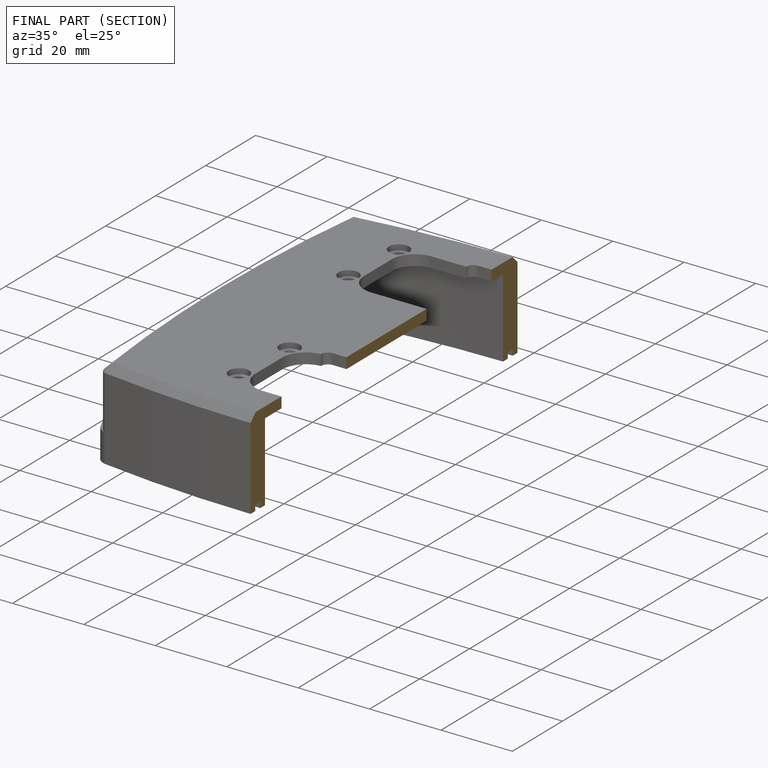
[diagram: finished part — half-section view (interior)]
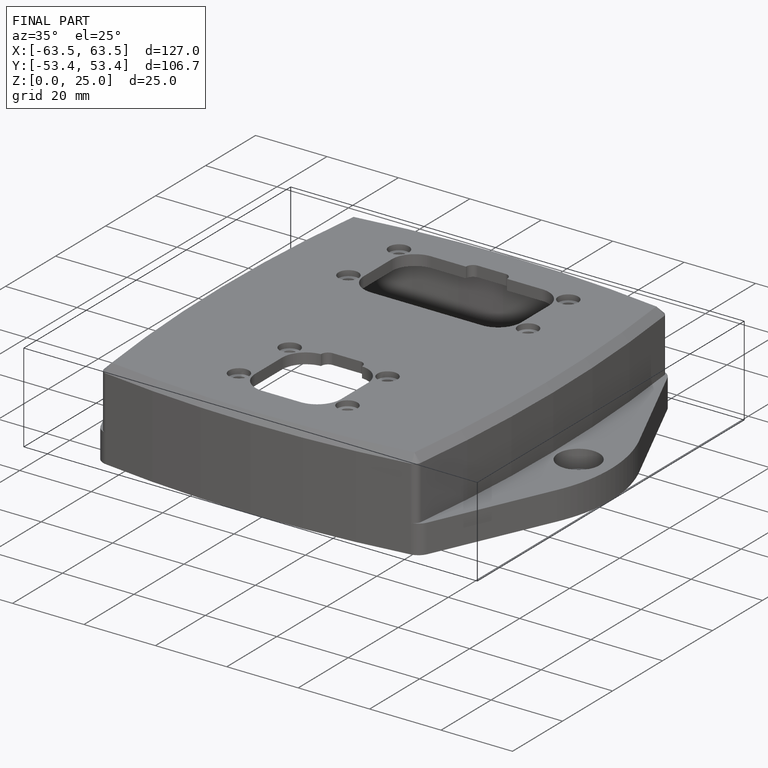
[diagram: finished part — iso view with bounding-box wireframe]
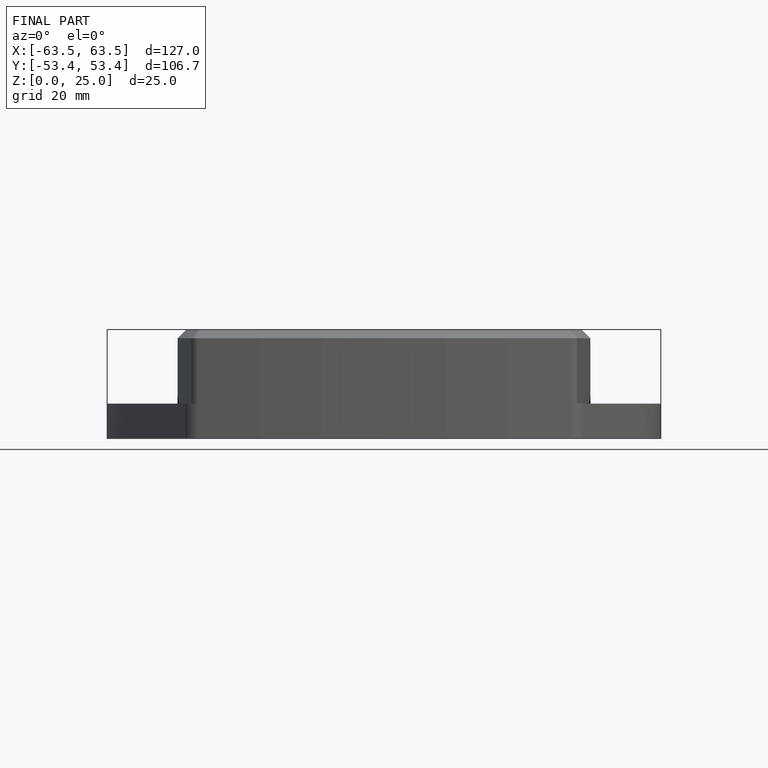
[diagram: finished part — front view with bounding-box wireframe]
